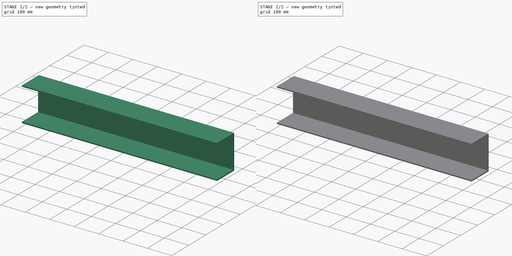
[diagram: build sequence overview — one tinted view per stage of 2, left to right]
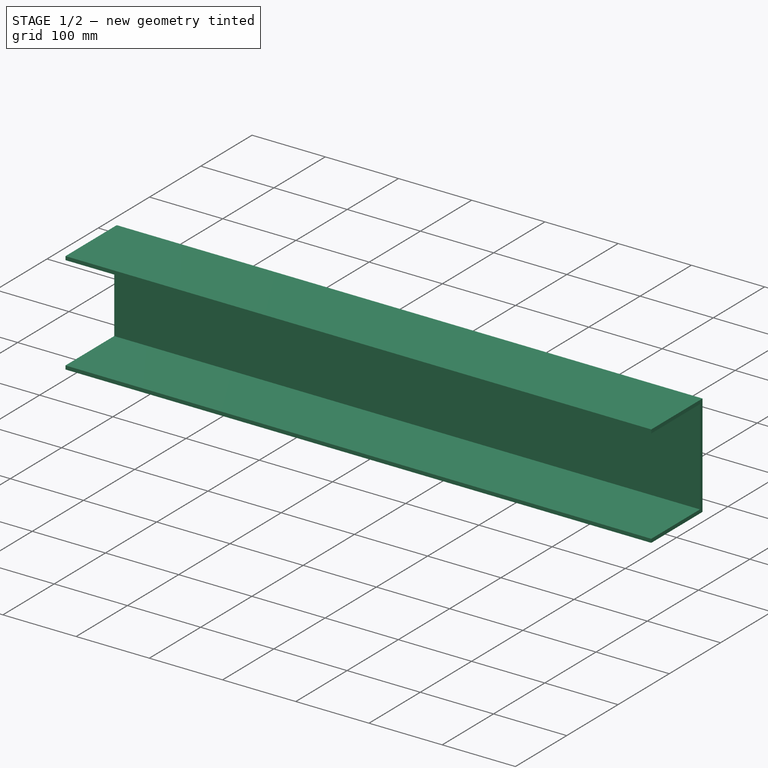
[diagram: stage 1 of 2 — iso view after this stage's code; geometry added in this stage tinted green]
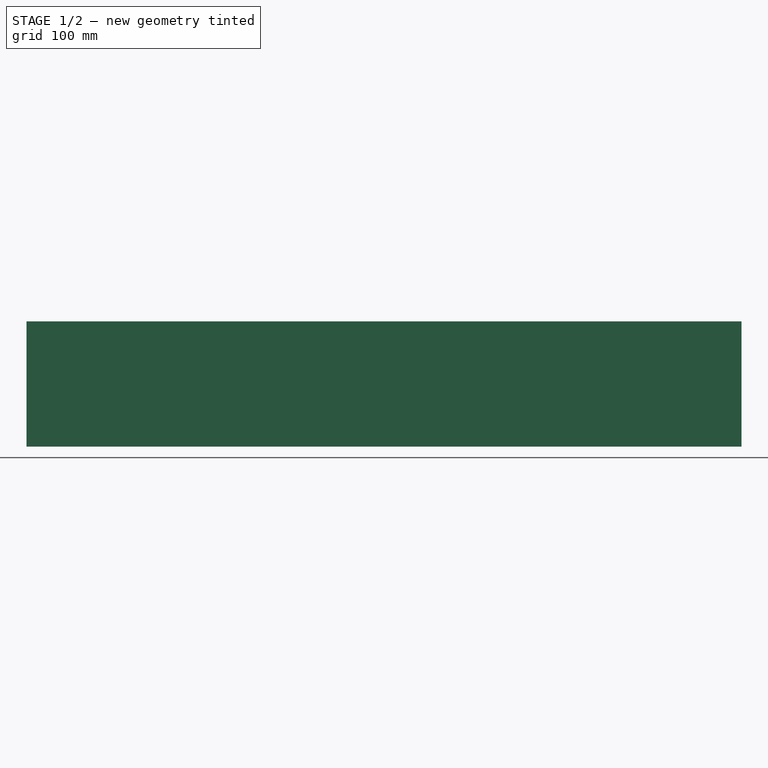
[diagram: stage 1 of 2 — front view after this stage's code; geometry added in this stage tinted green]
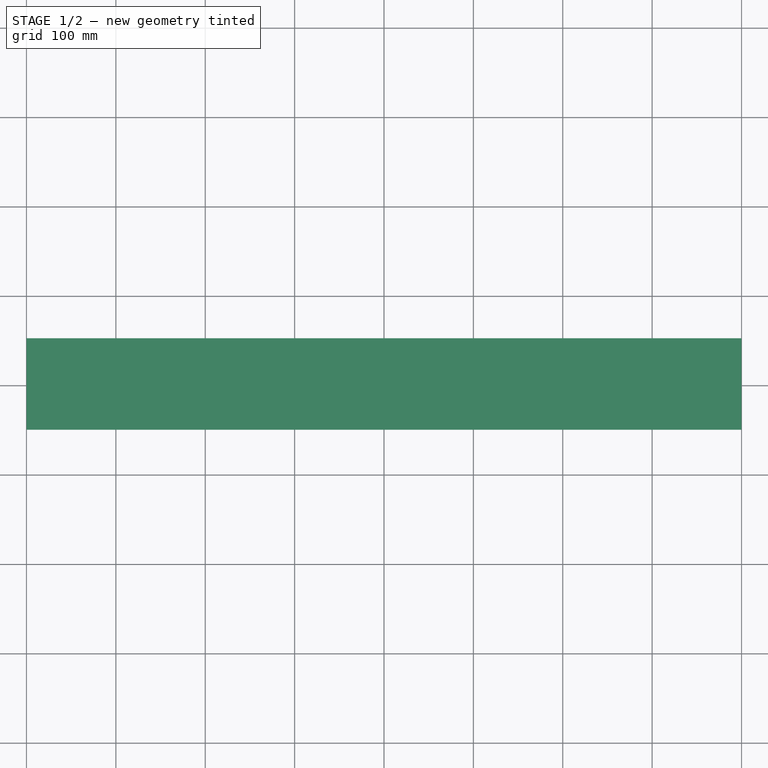
[diagram: stage 1 of 2 — top view after this stage's code; geometry added in this stage tinted green]
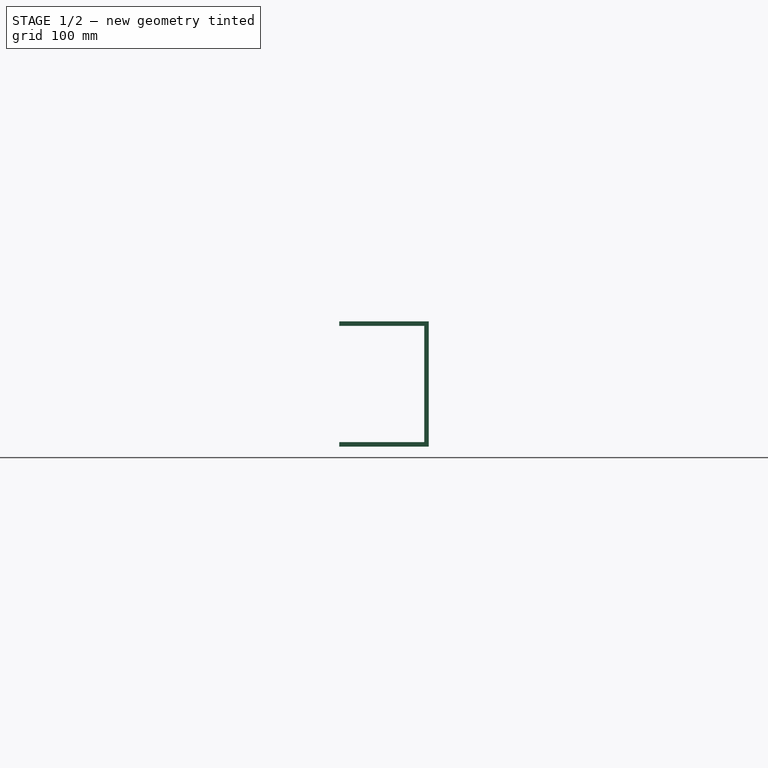
[diagram: stage 1 of 2 — right view after this stage's code; geometry added in this stage tinted green]
FCSTD DOCUMENT  (FreeCAD 0.20R29177 (Git))
Label: CSectionBack800
License: All rights reserved
LicenseURL: http://en.wikipedia.org/wiki/All_rights_reserved
objects: Sketcher::SketchObject×2, PartDesign::Pad×2, PartDesign::Body×1
note: 7 computed .brp shape members not serialized (recipe doc carries the construction recipe); baked Part::Feature solids carry a one-line shape summary decoded from their .brp

FEATURE [Sketcher::SketchObject] Sketch
  FullyConstrained = false
  MapMode = 5
  Placement = pos=(0,0,0) rot=(0.57735,0.57735,0.57735;2.0944rad)
  Support = -> [YZ_Plane]
  sketch-geometry (8):
    g0: LineSegment StartX=-49.4604 StartY=70.2613 StartZ=0 EndX=45.5396 EndY=70.2613 EndZ=0
    g1: LineSegment StartX=45.5396 StartY=70.2613 StartZ=0 EndX=45.5396 EndY=-59.7387 EndZ=0
    g2: LineSegment StartX=45.5396 StartY=-59.7387 StartZ=0 EndX=-49.4604 EndY=-59.7387 EndZ=0
    g3: LineSegment StartX=-49.4604 StartY=-59.7387 StartZ=0 EndX=-49.4604 EndY=-64.7387 EndZ=0
    g4: LineSegment StartX=-49.4604 StartY=-64.7387 StartZ=0 EndX=50.5396 EndY=-64.7387 EndZ=0
    g5: LineSegment StartX=50.5396 StartY=-64.7387 StartZ=0 EndX=50.5396 EndY=75.2613 EndZ=0
    g6: LineSegment StartX=50.5396 StartY=75.2613 StartZ=0 EndX=-49.4604 EndY=75.2613 EndZ=0
    g7: LineSegment StartX=-49.4604 StartY=75.2613 StartZ=0 EndX=-49.4604 EndY=70.2613 EndZ=0
  constraints (22):
    c: Horizontal(g0)
    c: Coincident(g0,g1)
    c: Vertical(g1)
    c: Coincident(g1,g2)
    c: Horizontal(g2)
    c: Coincident(g2,g3)
    c: Vertical(g3)
    c: Coincident(g3,g4)
    c: Horizontal(g4)
    c: Coincident(g4,g5)
    c: Vertical(g5)
    c: Coincident(g5,g6)
    c: Horizontal(g6)
    c: Coincident(g6,g7)
    c: Coincident(g7,g0)
    c: Vertical(g7)
    c: DistanceY(g5,g5) = 140
    c: DistanceY(g1,g1) = 130
    c: DistanceY(g3,g3) = 5
    c: DistanceX(g6,g6) = 100
    c: DistanceX(g4,g4) = 100
    c: DistanceX(g0,g0) = 95
FEATURE [PartDesign::Pad] Pad
  Direction = (1,-2e-16,3e-16)
  Length = 800
  Length2 = 10
  Placement = pos=(0,0,0) rot=(0.57735,0.57735,0.57735;2.0944rad)
  Profile = -> Sketch
  ReferenceAxis = -> Sketch [N_Axis]
  Type = 0
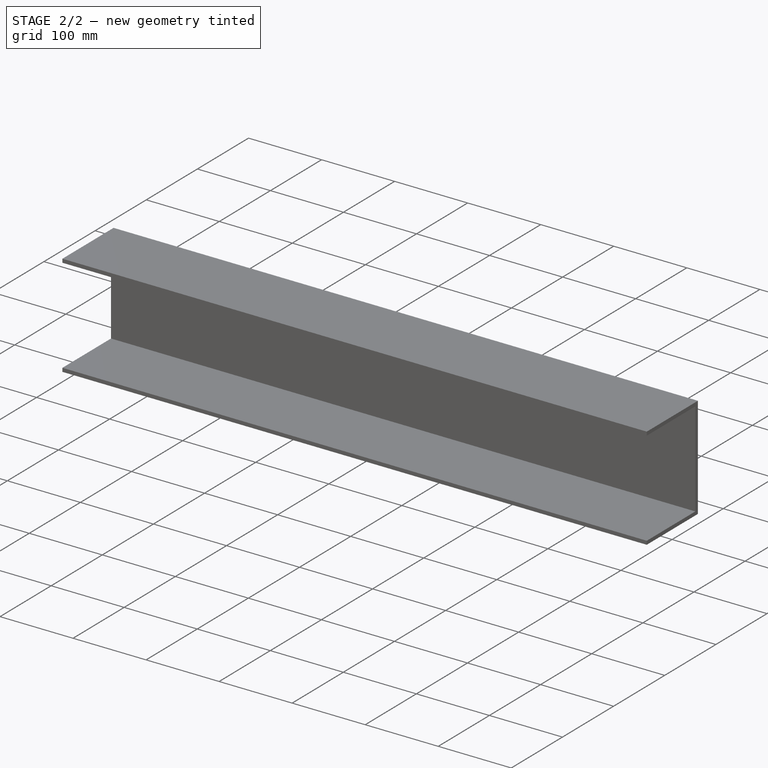
[diagram: stage 2 of 2 — iso view after this stage's code; geometry added in this stage tinted green]
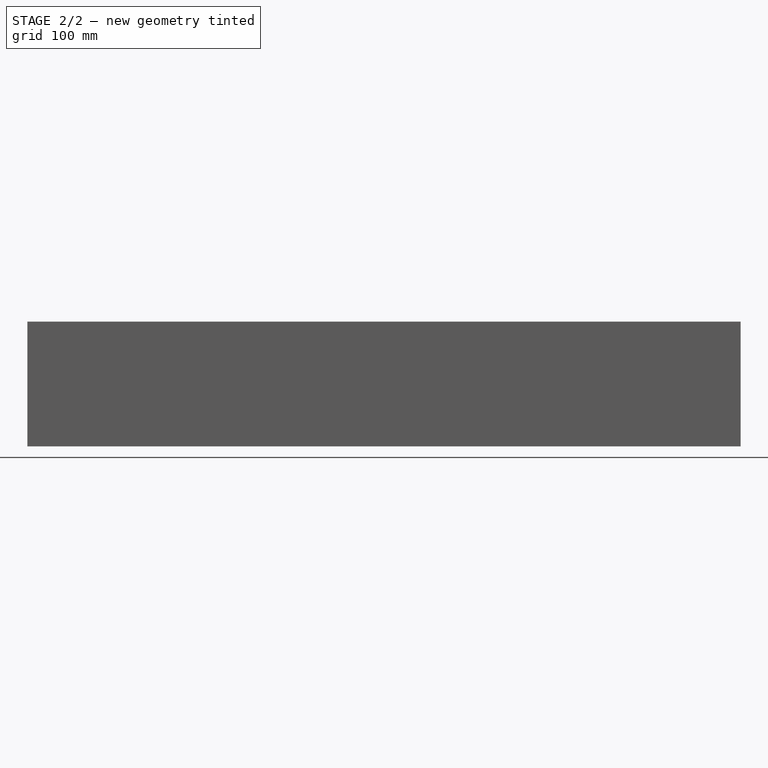
[diagram: stage 2 of 2 — front view after this stage's code; geometry added in this stage tinted green]
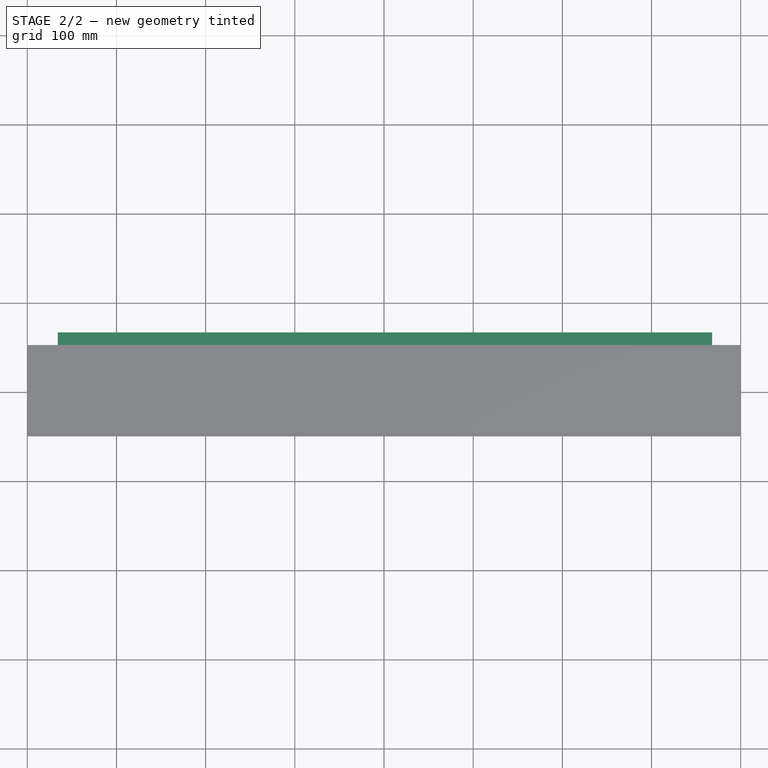
[diagram: stage 2 of 2 — top view after this stage's code; geometry added in this stage tinted green]
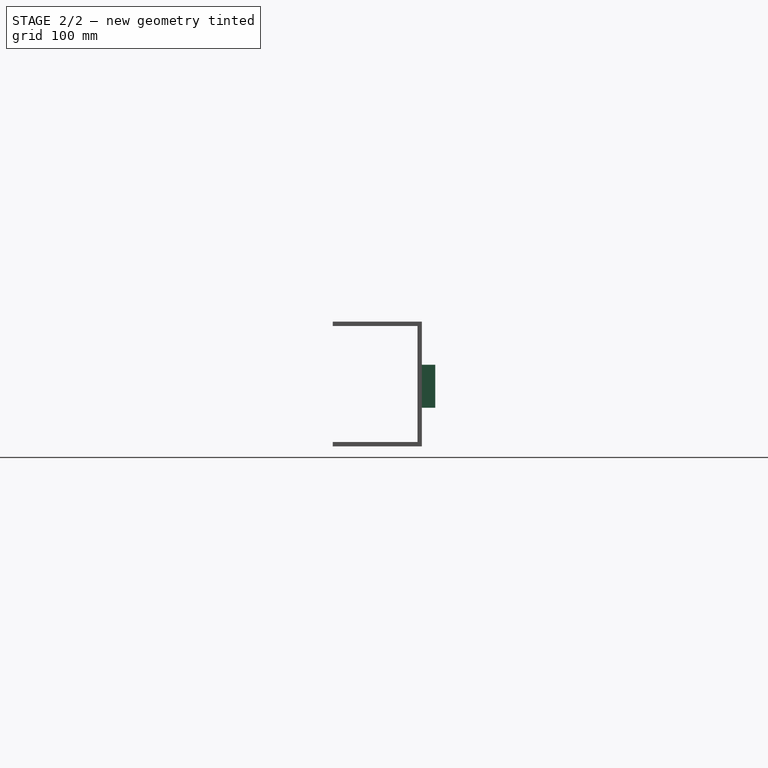
[diagram: stage 2 of 2 — right view after this stage's code; geometry added in this stage tinted green]
FEATURE [Sketcher::SketchObject] Sketch001
  FullyConstrained = false
  MapMode = 5
  Placement = pos=(2.24e-14,50.5396,-1.68e-14) rot=(0.57735,0.57735,0.57735;4.18879rad)
  sketch-geometry (8):
    g0: LineSegment StartX=26.9009 StartY=768.002 StartZ=0 EndX=-21.42 EndY=768.002 EndZ=0
    g1: LineSegment StartX=-21.42 StartY=768.002 StartZ=0 EndX=-21.42 EndY=34.1295 EndZ=0
    g2: LineSegment StartX=-21.42 StartY=34.1295 StartZ=0 EndX=26.9009 EndY=34.1295 EndZ=0
    g3: LineSegment StartX=26.9009 StartY=34.1295 StartZ=0 EndX=26.9009 EndY=768.002 EndZ=0
    g4: LineSegment StartX=10.794 StartY=751.895 StartZ=0 EndX=-7.32643 EndY=751.895 EndZ=0
    g5: LineSegment StartX=-7.32643 StartY=751.895 StartZ=0 EndX=-7.32643 EndY=57.2832 EndZ=0
    g6: LineSegment StartX=-7.32643 StartY=57.2832 StartZ=0 EndX=10.794 EndY=57.2832 EndZ=0
    g7: LineSegment StartX=10.794 StartY=57.2832 StartZ=0 EndX=10.794 EndY=751.895 EndZ=0
  constraints (16):
    c: Coincident(g0,g1)
    c: Coincident(g1,g2)
    c: Coincident(g2,g3)
    c: Coincident(g3,g0)
    c: Horizontal(g0)
    c: Horizontal(g2)
    c: Vertical(g1)
    c: Vertical(g3)
    c: Coincident(g4,g5)
    c: Coincident(g5,g6)
    c: Coincident(g6,g7)
    c: Coincident(g7,g4)
    c: Horizontal(g4)
    c: Horizontal(g6)
    c: Vertical(g5)
    c: Vertical(g7)
FEATURE [PartDesign::Pad] Pad001
  BaseFeature = -> Pad
  Direction = (4e-16,1,-2e-16)
  Length = 15
  Length2 = 10
  Placement = pos=(0,0,0) rot=(0.57735,0.57735,0.57735;2.0944rad)
  Profile = -> Sketch001
  ReferenceAxis = -> Sketch001 [N_Axis]
  Type = 0
FEATURE [PartDesign::Body] Body
  Group = -> [Sketch,Pad,Sketch001,Pad001]
  Origin = -> Origin
  Tip = -> Pad001
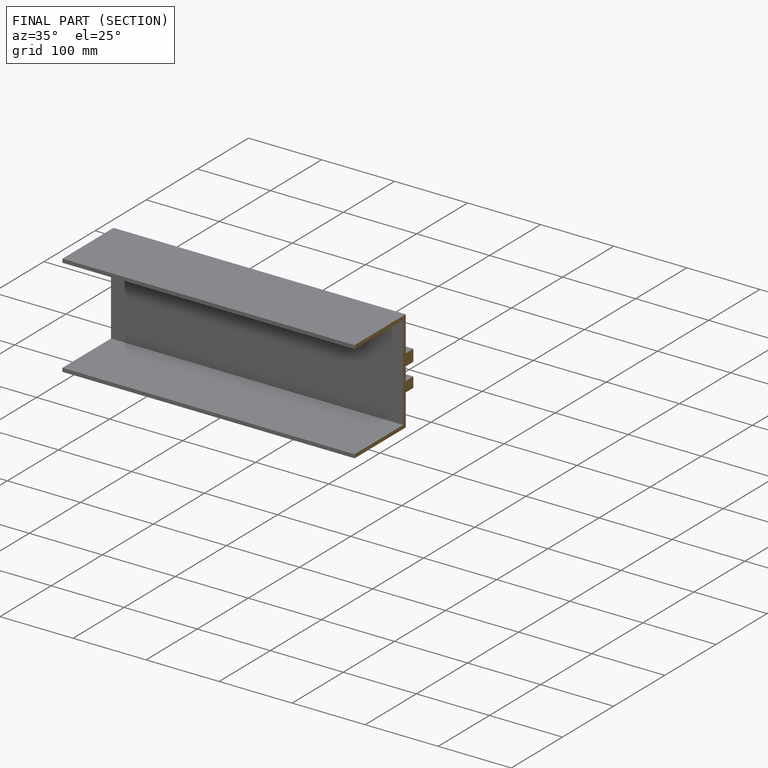
[diagram: finished part — half-section view (interior)]
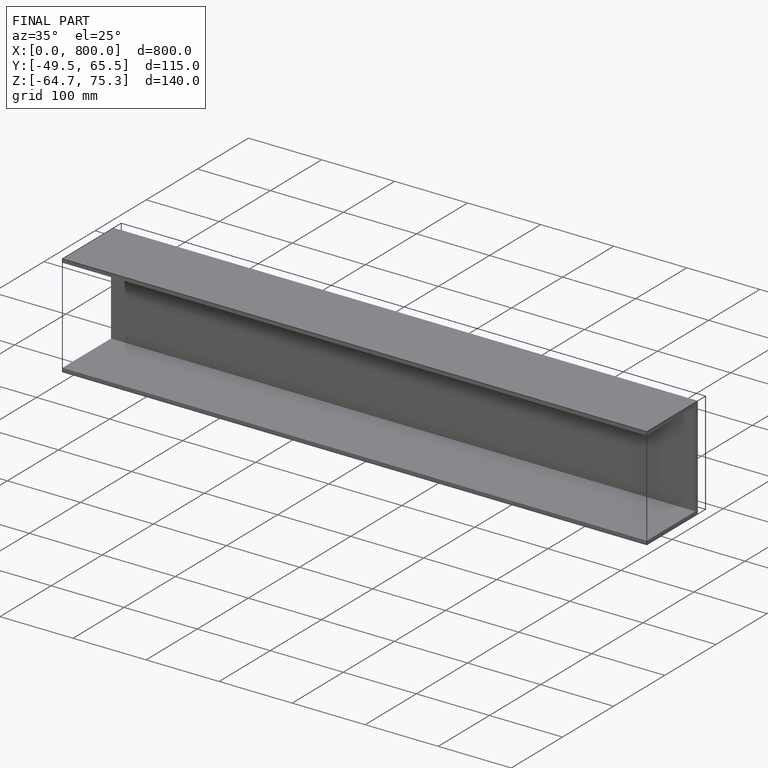
[diagram: finished part — iso view with bounding-box wireframe]
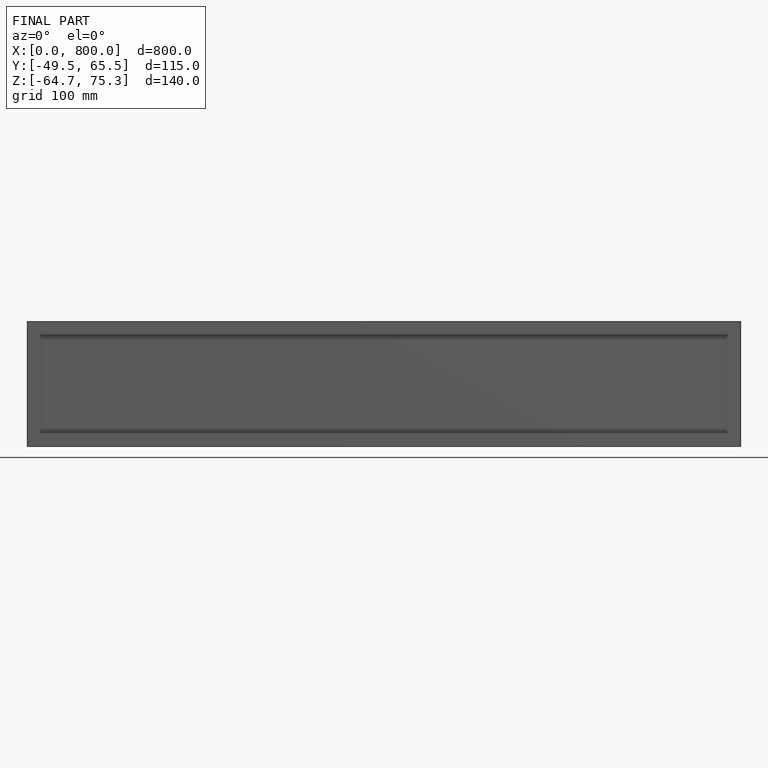
[diagram: finished part — front view with bounding-box wireframe]
